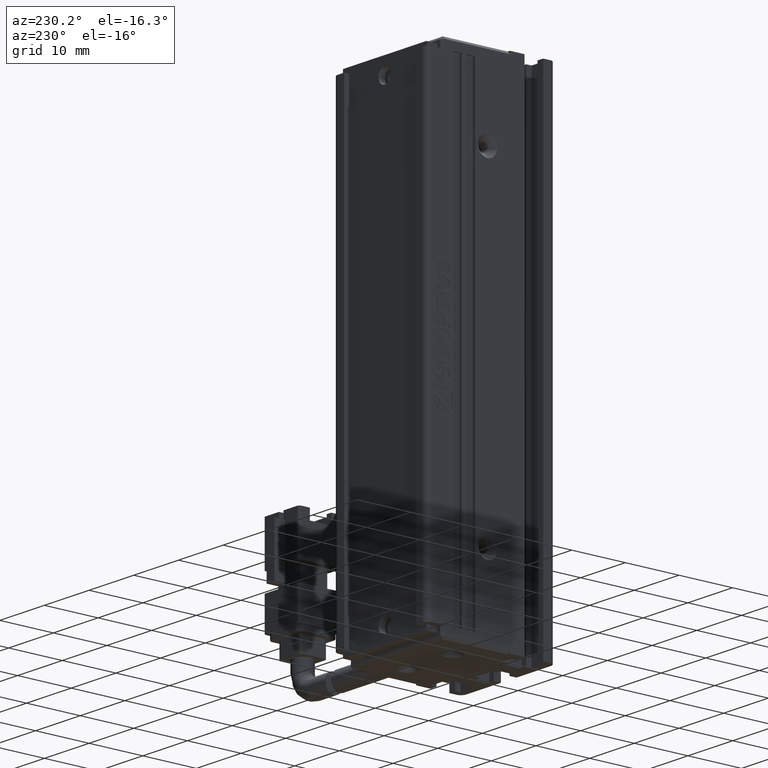
[diagram: clean part render]
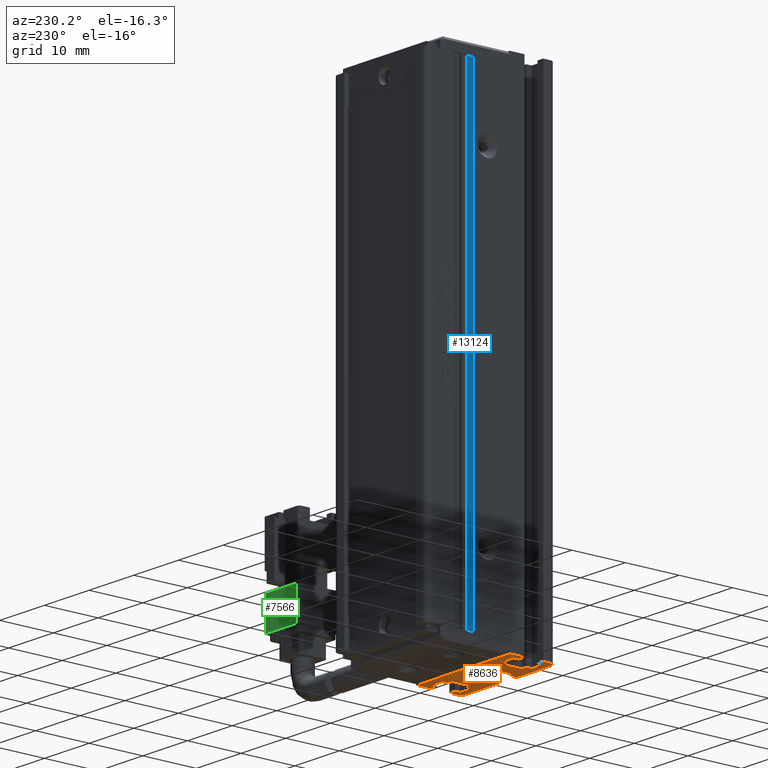
[diagram: same view with three faces highlighted in distinct colors, each labeled with its STEP entity id]
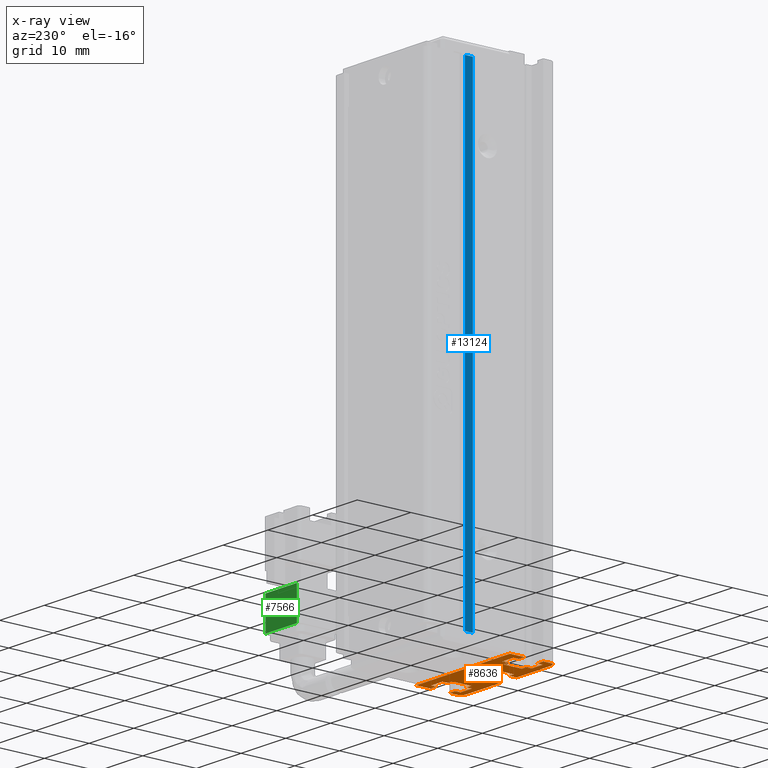
[diagram: x-ray of the same camera — body ghosted, the three highlighted faces saturated]
A machine part, auxiliary view with three faces highlighted in distinct colors.
The next image is the same camera in x-ray (body ghosted, the three faces saturated) — at least one of them is partly hidden behind the body in this view.
Their STEP definitions:

[orange] entity #8636 — the highlighted planar face has unit normal (-0, 0, 1).
#33 = LINE ( 'NONE', #20713, #29633 ) ;
#171 = VERTEX_POINT ( 'NONE', #16653 ) ;
#175 = ORIENTED_EDGE ( 'NONE', *, *, #8964, .F. ) ;
#263 = VECTOR ( 'NONE', #6238, 1000.000000000000000 ) ;
#284 = ORIENTED_EDGE ( 'NONE', *, *, #27319, .F. ) ;
#315 = VERTEX_POINT ( 'NONE', #16830 ) ;
#538 = ORIENTED_EDGE ( 'NONE', *, *, #23141, .T. ) ;
#656 = ORIENTED_EDGE ( 'NONE', *, *, #23299, .F. ) ;
#724 = ORIENTED_EDGE ( 'NONE', *, *, #30638, .T. ) ;
#781 = DIRECTION ( 'NONE',  ( -0.0000000000000000000, -1.000000000000000000, 0.0000000000000000000 ) ) ;
#829 = DIRECTION ( 'NONE',  ( -1.000000000000000000, -0.0000000000000000000, 0.0000000000000000000 ) ) ;
#907 = CARTESIAN_POINT ( 'NONE',  ( 42.67537974683542500, 15.79073232304837000, -160.0000000000000000 ) ) ;
#1117 = DIRECTION ( 'NONE',  ( 0.0000000000000000000, 0.0000000000000000000, 1.000000000000000000 ) ) ;
#1259 = ORIENTED_EDGE ( 'NONE', *, *, #13056, .F. ) ;
#1597 = DIRECTION ( 'NONE',  ( 1.000000000000000000, 0.0000000000000000000, 0.0000000000000000000 ) ) ;
#1750 = DIRECTION ( 'NONE',  ( -0.0000000000000000000, -1.000000000000000000, 0.0000000000000000000 ) ) ;
#1931 = ORIENTED_EDGE ( 'NONE', *, *, #32310, .F. ) ;
#1981 = CARTESIAN_POINT ( 'NONE',  ( 31.72537974683542600, 16.79073232304837400, -160.0000000000000000 ) ) ;
#2081 = EDGE_CURVE ( 'NONE', #29540, #19684, #17923, .T. ) ;
#2141 = CIRCLE ( 'NONE', #14010, 1.000000000000000900 ) ;
#2280 = DIRECTION ( 'NONE',  ( -0.0000000000000000000, -1.000000000000000000, 0.0000000000000000000 ) ) ;
#2318 = LINE ( 'NONE', #13762, #8532 ) ;
#2412 = DIRECTION ( 'NONE',  ( -0.0000000000000000000, -1.000000000000000000, 0.0000000000000000000 ) ) ;
#2566 = VERTEX_POINT ( 'NONE', #17621 ) ;
#2784 = ORIENTED_EDGE ( 'NONE', *, *, #5793, .T. ) ;
#2832 = VECTOR ( 'NONE', #2280, 1000.000000000000000 ) ;
#2977 = ORIENTED_EDGE ( 'NONE', *, *, #32053, .F. ) ;
#3270 = CARTESIAN_POINT ( 'NONE',  ( 40.92537974683543900, 13.29073232304835500, -160.0000000000000000 ) ) ;
#3381 = DIRECTION ( 'NONE',  ( 1.000000000000000000, -2.602085213965210200E-015, 0.0000000000000000000 ) ) ;
#3402 = VECTOR ( 'NONE', #3381, 1000.000000000000000 ) ;
#3404 = EDGE_CURVE ( 'NONE', #24667, #31929, #10517, .T. ) ;
#3559 = LINE ( 'NONE', #22908, #16745 ) ;
#3579 = ORIENTED_EDGE ( 'NONE', *, *, #19485, .F. ) ;
#3637 = LINE ( 'NONE', #4705, #2832 ) ;
#3763 = DIRECTION ( 'NONE',  ( -1.000000000000000000, -0.0000000000000000000, -0.0000000000000000000 ) ) ;
#3766 = CARTESIAN_POINT ( 'NONE',  ( 40.92537974683542500, 12.29073232304837200, -160.0000000000000000 ) ) ;
#3780 = LINE ( 'NONE', #11940, #29416 ) ;
#3788 = CARTESIAN_POINT ( 'NONE',  ( 51.42537974683541800, 16.79073232304837000, -160.0000000000000000 ) ) ;
#4031 = VERTEX_POINT ( 'NONE', #20805 ) ;
#4111 = ORIENTED_EDGE ( 'NONE', *, *, #31305, .T. ) ;
#4118 = VECTOR ( 'NONE', #19810, 1000.000000000000000 ) ;
#4123 = CARTESIAN_POINT ( 'NONE',  ( 38.17537974683542500, 7.083797468354437600, -160.0000000000000000 ) ) ;
#4227 = LINE ( 'NONE', #28382, #263 ) ;
#4268 = ORIENTED_EDGE ( 'NONE', *, *, #4432, .F. ) ;
#4294 = CARTESIAN_POINT ( 'NONE',  ( 43.67537974683542500, 7.083797468354437600, -160.0000000000000000 ) ) ;
#4432 = EDGE_CURVE ( 'NONE', #30656, #17570, #31017, .T. ) ;
#4528 = ORIENTED_EDGE ( 'NONE', *, *, #20346, .F. ) ;
#4584 = VECTOR ( 'NONE', #2412, 1000.000000000000000 ) ;
#4585 = VERTEX_POINT ( 'NONE', #26743 ) ;
#4660 = CARTESIAN_POINT ( 'NONE',  ( 39.17537974683542500, 14.79073232304837000, -160.0000000000000000 ) ) ;
#4705 = CARTESIAN_POINT ( 'NONE',  ( 51.42537974683541800, 7.083797468354437600, -160.0000000000000000 ) ) ;
#4825 = CARTESIAN_POINT ( 'NONE',  ( 30.42537974683542900, 19.49073232304837000, -160.0000000000000000 ) ) ;
#4867 = DIRECTION ( 'NONE',  ( -1.000000000000000000, -0.0000000000000000000, 0.0000000000000000000 ) ) ;
#4884 = CARTESIAN_POINT ( 'NONE',  ( 50.42537974683541800, 11.99073232304837000, -160.0000000000000000 ) ) ;
#5353 = CARTESIAN_POINT ( 'NONE',  ( 39.17537974683542500, 7.083797468354437600, -160.0000000000000000 ) ) ;
#5440 = CARTESIAN_POINT ( 'NONE',  ( 31.72537974683542600, 12.29073232304837200, -160.0000000000000000 ) ) ;
#5460 = LINE ( 'NONE', #6148, #31131 ) ;
#5793 = EDGE_CURVE ( 'NONE', #9365, #7753, #33, .T. ) ;
#5830 = EDGE_CURVE ( 'NONE', #14556, #27381, #24056, .T. ) ;
#5900 = LINE ( 'NONE', #21573, #24869 ) ;
#5940 = CARTESIAN_POINT ( 'NONE',  ( 43.67537974683542500, 14.79073232304837000, -160.0000000000000000 ) ) ;
#6055 = CARTESIAN_POINT ( 'NONE',  ( 30.42537974683543200, 7.083797468354424300, -160.0000000000000000 ) ) ;
#6073 = VERTEX_POINT ( 'NONE', #31805 ) ;
#6148 = CARTESIAN_POINT ( 'NONE',  ( 46.62537974683541400, 7.083797468354437600, -160.0000000000000000 ) ) ;
#6160 = ORIENTED_EDGE ( 'NONE', *, *, #12921, .F. ) ;
#6238 = DIRECTION ( 'NONE',  ( 0.0000000000000000000, 1.000000000000000000, 0.0000000000000000000 ) ) ;
#6468 = CARTESIAN_POINT ( 'NONE',  ( 31.42537974683542900, 11.99073232304837000, -160.0000000000000000 ) ) ;
#6599 = VERTEX_POINT ( 'NONE', #1981 ) ;
#6616 = DIRECTION ( 'NONE',  ( -1.000000000000000000, 0.0000000000000000000, 0.0000000000000000000 ) ) ;
#6624 = CARTESIAN_POINT ( 'NONE',  ( 31.72537974683542600, 17.79073232304837000, -160.0000000000000000 ) ) ;
#6701 = VERTEX_POINT ( 'NONE', #12047 ) ;
#6715 = ORIENTED_EDGE ( 'NONE', *, *, #3404, .F. ) ;
#7235 = CARTESIAN_POINT ( 'NONE',  ( 40.92537974683542500, 14.79073232304837000, -160.0000000000000000 ) ) ;
#7359 = CARTESIAN_POINT ( 'NONE',  ( 40.92537974683542500, 17.79073232304837000, -160.0000000000000000 ) ) ;
#7399 = LINE ( 'NONE', #3766, #30745 ) ;
#7452 = CARTESIAN_POINT ( 'NONE',  ( 46.62537974683541400, 16.79073232304837400, -160.0000000000000000 ) ) ;
#7454 = CARTESIAN_POINT ( 'NONE',  ( 40.92537974683541100, 13.29073232304835500, -160.0000000000000000 ) ) ;
#7513 = DIRECTION ( 'NONE',  ( 0.0000000000000000000, 1.000000000000000000, 0.0000000000000000000 ) ) ;
#7680 = VERTEX_POINT ( 'NONE', #29605 ) ;
#7710 = VERTEX_POINT ( 'NONE', #21974 ) ;
#7753 = VERTEX_POINT ( 'NONE', #4660 ) ;
#7761 = DIRECTION ( 'NONE',  ( 1.000000000000000000, 0.0000000000000000000, 0.0000000000000000000 ) ) ;
#7791 = CARTESIAN_POINT ( 'NONE',  ( 40.92537974683542500, 10.99073232304837000, -160.0000000000000000 ) ) ;
#7883 = CARTESIAN_POINT ( 'NONE',  ( 30.42537974683542100, 16.79073232304837400, -160.0000000000000000 ) ) ;
#7955 = VECTOR ( 'NONE', #24784, 1000.000000000000000 ) ;
#8183 = EDGE_CURVE ( 'NONE', #16789, #2566, #23273, .T. ) ;
#8262 = VECTOR ( 'NONE', #18425, 1000.000000000000000 ) ;
#8308 = VERTEX_POINT ( 'NONE', #22063 ) ;
#8383 = LINE ( 'NONE', #13647, #13788 ) ;
#8480 = ORIENTED_EDGE ( 'NONE', *, *, #5830, .F. ) ;
#8532 = VECTOR ( 'NONE', #1750, 1000.000000000000000 ) ;
#8636 = ADVANCED_FACE ( 'NONE', ( #14652 ), #11101, .F. ) ;
#8952 = EDGE_CURVE ( 'NONE', #27381, #30656, #3780, .T. ) ;
#8964 = EDGE_CURVE ( 'NONE', #27276, #15067, #11303, .T. ) ;
#9144 = VECTOR ( 'NONE', #17753, 1000.000000000000000 ) ;
#9185 = CARTESIAN_POINT ( 'NONE',  ( 34.22537974683547200, 7.083797468354414500, -160.0000000000000000 ) ) ;
#9226 = VECTOR ( 'NONE', #3763, 1000.000000000000000 ) ;
#9258 = VERTEX_POINT ( 'NONE', #16160 ) ;
#9273 = CARTESIAN_POINT ( 'NONE',  ( 34.22537974683543600, 13.29073232304837200, -160.0000000000000000 ) ) ;
#9365 = VERTEX_POINT ( 'NONE', #16904 ) ;
#9572 = EDGE_CURVE ( 'NONE', #6073, #15067, #20076, .T. ) ;
#9622 = ORIENTED_EDGE ( 'NONE', *, *, #32077, .F. ) ;
#9957 = LINE ( 'NONE', #13425, #30201 ) ;
#10239 = CARTESIAN_POINT ( 'NONE',  ( 40.92537974683542500, 17.79073232304837400, -160.0000000000000000 ) ) ;
#10453 = VECTOR ( 'NONE', #11948, 1000.000000000000000 ) ;
#10517 = LINE ( 'NONE', #30478, #22147 ) ;
#10618 = ORIENTED_EDGE ( 'NONE', *, *, #14566, .F. ) ;
#10764 = LINE ( 'NONE', #27944, #20873 ) ;
#10965 = CARTESIAN_POINT ( 'NONE',  ( 47.62537974683543500, 7.083797468354461600, -160.0000000000000000 ) ) ;
#11101 = PLANE ( 'NONE',  #27574 ) ;
#11209 = CARTESIAN_POINT ( 'NONE',  ( 50.12537974683542800, 13.29073232304837200, -160.0000000000000000 ) ) ;
#11222 = CARTESIAN_POINT ( 'NONE',  ( 47.62537974683541400, 13.29073232304837200, -160.0000000000000000 ) ) ;
#11253 = DIRECTION ( 'NONE',  ( -3.469446951953635100E-015, 1.000000000000000000, 0.0000000000000000000 ) ) ;
#11303 = LINE ( 'NONE', #5353, #24392 ) ;
#11431 = LINE ( 'NONE', #7235, #26552 ) ;
#11552 = CARTESIAN_POINT ( 'NONE',  ( 50.12537974683542800, 12.29073232304837200, -160.0000000000000000 ) ) ;
#11593 = DIRECTION ( 'NONE',  ( 3.469446951953608300E-015, 1.000000000000000000, 0.0000000000000000000 ) ) ;
#11784 = LINE ( 'NONE', #26173, #23422 ) ;
#11933 = VECTOR ( 'NONE', #7761, 1000.000000000000000 ) ;
#11940 = CARTESIAN_POINT ( 'NONE',  ( 50.12537974683540700, 7.083797468354405600, -160.0000000000000000 ) ) ;
#11948 = DIRECTION ( 'NONE',  ( 1.000000000000000000, 0.0000000000000000000, 0.0000000000000000000 ) ) ;
#12047 = CARTESIAN_POINT ( 'NONE',  ( 46.62537974683541400, 13.29073232304837200, -160.0000000000000000 ) ) ;
#12068 = EDGE_CURVE ( 'NONE', #30229, #6599, #23392, .T. ) ;
#12183 = LINE ( 'NONE', #7454, #7955 ) ;
#12502 = ORIENTED_EDGE ( 'NONE', *, *, #27012, .F. ) ;
#12715 = CARTESIAN_POINT ( 'NONE',  ( 39.17537974683542500, 10.99073232304837000, -160.0000000000000000 ) ) ;
#12765 = ORIENTED_EDGE ( 'NONE', *, *, #14343, .F. ) ;
#12785 = VECTOR ( 'NONE', #30685, 1000.000000000000000 ) ;
#12921 = EDGE_CURVE ( 'NONE', #6701, #24050, #5460, .T. ) ;
#13021 = LINE ( 'NONE', #28951, #24258 ) ;
#13056 = EDGE_CURVE ( 'NONE', #16138, #6599, #14325, .T. ) ;
#13075 = LINE ( 'NONE', #10239, #11933 ) ;
#13223 = CARTESIAN_POINT ( 'NONE',  ( 40.92537974683542500, 19.49073232304837000, -160.0000000000000000 ) ) ;
#13233 = DIRECTION ( 'NONE',  ( 1.000000000000000000, 0.0000000000000000000, 0.0000000000000000000 ) ) ;
#13256 = CARTESIAN_POINT ( 'NONE',  ( 35.22537974683543600, 16.79073232304837400, -160.0000000000000000 ) ) ;
#13337 = EDGE_CURVE ( 'NONE', #171, #19684, #4227, .T. ) ;
#13356 = VERTEX_POINT ( 'NONE', #30799 ) ;
#13425 = CARTESIAN_POINT ( 'NONE',  ( 40.92537974683543900, 16.79073232304838100, -160.0000000000000000 ) ) ;
#13436 = VECTOR ( 'NONE', #30076, 1000.000000000000000 ) ;
#13571 = CIRCLE ( 'NONE', #26814, 1.000000000000000900 ) ;
#13647 = CARTESIAN_POINT ( 'NONE',  ( 50.12537974683544900, 7.083797468354469600, -160.0000000000000000 ) ) ;
#13671 = DIRECTION ( 'NONE',  ( -0.0000000000000000000, 0.0000000000000000000, 1.000000000000000000 ) ) ;
#13762 = CARTESIAN_POINT ( 'NONE',  ( 35.22537974683543600, 7.083797468354437600, -160.0000000000000000 ) ) ;
#13788 = VECTOR ( 'NONE', #31414, 1000.000000000000000 ) ;
#13965 = CARTESIAN_POINT ( 'NONE',  ( 51.42537974683541800, 11.99073232304837000, -160.0000000000000000 ) ) ;
#14010 = AXIS2_PLACEMENT_3D ( 'NONE', #6468, #1117, #28701 ) ;
#14049 = EDGE_CURVE ( 'NONE', #6073, #7680, #31722, .T. ) ;
#14325 = LINE ( 'NONE', #14989, #10453 ) ;
#14343 = EDGE_CURVE ( 'NONE', #24382, #6701, #12183, .T. ) ;
#14556 = VERTEX_POINT ( 'NONE', #28407 ) ;
#14566 = EDGE_CURVE ( 'NONE', #16947, #7710, #11784, .T. ) ;
#14652 = FACE_OUTER_BOUND ( 'NONE', #21927, .T. ) ;
#14989 = CARTESIAN_POINT ( 'NONE',  ( 40.92537974683542500, 16.79073232304837400, -160.0000000000000000 ) ) ;
#15067 = VERTEX_POINT ( 'NONE', #18257 ) ;
#15121 = CARTESIAN_POINT ( 'NONE',  ( 31.72537974683542600, 13.29073232304837200, -160.0000000000000000 ) ) ;
#15237 = CARTESIAN_POINT ( 'NONE',  ( 40.92537974683542500, 14.79073232304837000, -160.0000000000000000 ) ) ;
#15286 = EDGE_CURVE ( 'NONE', #8308, #19026, #5900, .T. ) ;
#15395 = VERTEX_POINT ( 'NONE', #13965 ) ;
#15575 = CARTESIAN_POINT ( 'NONE',  ( 40.92537974683542500, 13.29073232304837200, -160.0000000000000000 ) ) ;
#15824 = VECTOR ( 'NONE', #30501, 1000.000000000000000 ) ;
#15920 = LINE ( 'NONE', #13223, #12785 ) ;
#16138 = VERTEX_POINT ( 'NONE', #7883 ) ;
#16160 = CARTESIAN_POINT ( 'NONE',  ( 35.22537974683543600, 13.29073232304837000, -160.0000000000000000 ) ) ;
#16209 = VERTEX_POINT ( 'NONE', #15121 ) ;
#16291 = DIRECTION ( 'NONE',  ( -1.334402673828310700E-015, -1.000000000000000000, 0.0000000000000000000 ) ) ;
#16506 = EDGE_CURVE ( 'NONE', #18900, #29540, #26255, .T. ) ;
#16526 = VECTOR ( 'NONE', #28752, 1000.000000000000000 ) ;
#16564 = VECTOR ( 'NONE', #23207, 1000.000000000000000 ) ;
#16653 = CARTESIAN_POINT ( 'NONE',  ( 42.67537974683542500, 10.99073232304837000, -160.0000000000000000 ) ) ;
#16696 = VECTOR ( 'NONE', #11253, 1000.000000000000000 ) ;
#16710 = ORIENTED_EDGE ( 'NONE', *, *, #25801, .F. ) ;
#16745 = VECTOR ( 'NONE', #781, 1000.000000000000000 ) ;
#16747 = EDGE_CURVE ( 'NONE', #17570, #24382, #23132, .T. ) ;
#16758 = ORIENTED_EDGE ( 'NONE', *, *, #18036, .T. ) ;
#16789 = VERTEX_POINT ( 'NONE', #20977 ) ;
#16830 = CARTESIAN_POINT ( 'NONE',  ( 51.42537974683541800, 19.49073232304837000, -160.0000000000000000 ) ) ;
#16904 = CARTESIAN_POINT ( 'NONE',  ( 39.17537974683542500, 15.79073232304837000, -160.0000000000000000 ) ) ;
#16930 = EDGE_CURVE ( 'NONE', #24667, #4031, #8383, .T. ) ;
#16932 = EDGE_CURVE ( 'NONE', #14556, #15395, #27027, .T. ) ;
#16947 = VERTEX_POINT ( 'NONE', #28685 ) ;
#16959 = VECTOR ( 'NONE', #29025, 1000.000000000000000 ) ;
#16966 = LINE ( 'NONE', #22251, #4584 ) ;
#17176 = LINE ( 'NONE', #23323, #27692 ) ;
#17286 = LINE ( 'NONE', #26993, #4118 ) ;
#17556 = EDGE_CURVE ( 'NONE', #7753, #7680, #11431, .T. ) ;
#17570 = VERTEX_POINT ( 'NONE', #21970 ) ;
#17581 = ORIENTED_EDGE ( 'NONE', *, *, #16932, .T. ) ;
#17621 = CARTESIAN_POINT ( 'NONE',  ( 34.22537974683542900, 17.79073232304837000, -160.0000000000000000 ) ) ;
#17753 = DIRECTION ( 'NONE',  ( 1.000000000000000000, 0.0000000000000000000, 0.0000000000000000000 ) ) ;
#17923 = LINE ( 'NONE', #24636, #21063 ) ;
#17985 = CARTESIAN_POINT ( 'NONE',  ( 40.92537974683542500, 12.29073232304837200, -160.0000000000000000 ) ) ;
#18036 = EDGE_CURVE ( 'NONE', #315, #31929, #3637, .T. ) ;
#18077 = VERTEX_POINT ( 'NONE', #27669 ) ;
#18151 = VERTEX_POINT ( 'NONE', #5440 ) ;
#18257 = CARTESIAN_POINT ( 'NONE',  ( 39.17537974683542500, 12.29073232304837200, -160.0000000000000000 ) ) ;
#18334 = ORIENTED_EDGE ( 'NONE', *, *, #2081, .F. ) ;
#18425 = DIRECTION ( 'NONE',  ( 1.334402673828310700E-015, -1.000000000000000000, 0.0000000000000000000 ) ) ;
#18686 = VECTOR ( 'NONE', #1597, 1000.000000000000000 ) ;
#18746 = DIRECTION ( 'NONE',  ( -1.000000000000000000, -0.0000000000000000000, -0.0000000000000000000 ) ) ;
#18811 = VERTEX_POINT ( 'NONE', #13256 ) ;
#18891 = VECTOR ( 'NONE', #16291, 1000.000000000000000 ) ;
#18900 = VERTEX_POINT ( 'NONE', #5940 ) ;
#18907 = CARTESIAN_POINT ( 'NONE',  ( 51.42537974683541100, 7.083797468354424300, -160.0000000000000000 ) ) ;
#19026 = VERTEX_POINT ( 'NONE', #9273 ) ;
#19248 = EDGE_CURVE ( 'NONE', #27677, #16138, #16966, .T. ) ;
#19290 = DIRECTION ( 'NONE',  ( 3.469446951953608300E-015, -1.000000000000000000, 0.0000000000000000000 ) ) ;
#19329 = EDGE_CURVE ( 'NONE', #19026, #9258, #25879, .T. ) ;
#19430 = VECTOR ( 'NONE', #829, 1000.000000000000000 ) ;
#19485 = EDGE_CURVE ( 'NONE', #24050, #16947, #9957, .T. ) ;
#19684 = VERTEX_POINT ( 'NONE', #31630 ) ;
#19728 = ORIENTED_EDGE ( 'NONE', *, *, #16747, .F. ) ;
#19810 = DIRECTION ( 'NONE',  ( 1.000000000000000000, 0.0000000000000000000, 0.0000000000000000000 ) ) ;
#20008 = ORIENTED_EDGE ( 'NONE', *, *, #29280, .F. ) ;
#20076 = LINE ( 'NONE', #17985, #13436 ) ;
#20290 = EDGE_CURVE ( 'NONE', #18077, #16209, #17286, .T. ) ;
#20295 = CARTESIAN_POINT ( 'NONE',  ( 50.12537974683542800, 16.79073232304837000, -160.0000000000000000 ) ) ;
#20346 = EDGE_CURVE ( 'NONE', #171, #20677, #25405, .T. ) ;
#20355 = DIRECTION ( 'NONE',  ( 1.000000000000000000, 0.0000000000000000000, 0.0000000000000000000 ) ) ;
#20677 = VERTEX_POINT ( 'NONE', #26199 ) ;
#20713 = CARTESIAN_POINT ( 'NONE',  ( 39.17537974683542500, 7.083797468354437600, -160.0000000000000000 ) ) ;
#20766 = CARTESIAN_POINT ( 'NONE',  ( 43.67537974683542500, 12.29073232304837200, -160.0000000000000000 ) ) ;
#20805 = CARTESIAN_POINT ( 'NONE',  ( 50.12537974683542100, 17.79073232304837400, -160.0000000000000000 ) ) ;
#20873 = VECTOR ( 'NONE', #13233, 1000.000000000000000 ) ;
#20977 = CARTESIAN_POINT ( 'NONE',  ( 34.22537974683543600, 16.79073232304837400, -160.0000000000000000 ) ) ;
#21063 = VECTOR ( 'NONE', #22477, 1000.000000000000000 ) ;
#21192 = VERTEX_POINT ( 'NONE', #907 ) ;
#21295 = ORIENTED_EDGE ( 'NONE', *, *, #12068, .T. ) ;
#21313 = CARTESIAN_POINT ( 'NONE',  ( 31.42537974683542900, 10.99073232304837000, -160.0000000000000000 ) ) ;
#21456 = DIRECTION ( 'NONE',  ( 0.0000000000000000000, 0.0000000000000000000, 1.000000000000000000 ) ) ;
#21573 = CARTESIAN_POINT ( 'NONE',  ( 34.22537974683541500, 7.083797468354461600, -160.0000000000000000 ) ) ;
#21927 = EDGE_LOOP ( 'NONE', ( #16758, #6715, #25555, #20008, #10618, #3579, #6160, #12765, #19728, #4268, #29172, #8480, #17581, #9622, #4528, #28926, #18334, #27865, #27610, #284, #22467, #2784, #27437, #25284, #27803, #175, #23139, #16710, #12502, #22222, #724, #1931, #26470, #30491, #656, #4111, #22468, #2977, #21295, #1259, #28903, #538 ) ) ;
#21970 = CARTESIAN_POINT ( 'NONE',  ( 47.62537974683541400, 12.29073232304837200, -160.0000000000000000 ) ) ;
#21974 = CARTESIAN_POINT ( 'NONE',  ( 47.62537974683541400, 17.79073232304837400, -160.0000000000000000 ) ) ;
#22063 = CARTESIAN_POINT ( 'NONE',  ( 34.22537974683542900, 12.29073232304837200, -160.0000000000000000 ) ) ;
#22120 = LINE ( 'NONE', #7359, #18686 ) ;
#22147 = VECTOR ( 'NONE', #30585, 1000.000000000000000 ) ;
#22222 = ORIENTED_EDGE ( 'NONE', *, *, #20290, .T. ) ;
#22251 = CARTESIAN_POINT ( 'NONE',  ( 30.42537974683542100, 7.083797468354437600, -160.0000000000000000 ) ) ;
#22467 = ORIENTED_EDGE ( 'NONE', *, *, #29419, .F. ) ;
#22468 = ORIENTED_EDGE ( 'NONE', *, *, #8183, .T. ) ;
#22477 = DIRECTION ( 'NONE',  ( -1.000000000000000000, -0.0000000000000000000, 0.0000000000000000000 ) ) ;
#22908 = CARTESIAN_POINT ( 'NONE',  ( 42.67537974683542500, 7.083797468354437600, -160.0000000000000000 ) ) ;
#23132 = LINE ( 'NONE', #10965, #16564 ) ;
#23139 = ORIENTED_EDGE ( 'NONE', *, *, #24153, .F. ) ;
#23141 = EDGE_CURVE ( 'NONE', #27677, #315, #15920, .T. ) ;
#23207 = DIRECTION ( 'NONE',  ( -3.469446951953608300E-015, 1.000000000000000000, 0.0000000000000000000 ) ) ;
#23231 = CARTESIAN_POINT ( 'NONE',  ( 40.92537974683542500, 7.083797468354437600, -160.0000000000000000 ) ) ;
#23273 = LINE ( 'NONE', #9185, #16696 ) ;
#23299 = EDGE_CURVE ( 'NONE', #18811, #9258, #2318, .T. ) ;
#23323 = CARTESIAN_POINT ( 'NONE',  ( 40.92537974683543900, 16.79073232304836000, -160.0000000000000000 ) ) ;
#23392 = LINE ( 'NONE', #30145, #29680 ) ;
#23422 = VECTOR ( 'NONE', #26066, 1000.000000000000000 ) ;
#24050 = VERTEX_POINT ( 'NONE', #7452 ) ;
#24056 = LINE ( 'NONE', #15575, #19430 ) ;
#24153 = EDGE_CURVE ( 'NONE', #27375, #27276, #25118, .T. ) ;
#24258 = VECTOR ( 'NONE', #19290, 1000.000000000000000 ) ;
#24382 = VERTEX_POINT ( 'NONE', #11222 ) ;
#24392 = VECTOR ( 'NONE', #7513, 1000.000000000000000 ) ;
#24636 = CARTESIAN_POINT ( 'NONE',  ( 40.92537974683542500, 12.29073232304837200, -160.0000000000000000 ) ) ;
#24667 = VERTEX_POINT ( 'NONE', #20295 ) ;
#24784 = DIRECTION ( 'NONE',  ( -1.000000000000000000, -2.602085213965210200E-015, 0.0000000000000000000 ) ) ;
#24869 = VECTOR ( 'NONE', #11593, 1000.000000000000000 ) ;
#25118 = LINE ( 'NONE', #28301, #15824 ) ;
#25268 = DIRECTION ( 'NONE',  ( -3.469446951953608300E-015, -1.000000000000000000, 0.0000000000000000000 ) ) ;
#25284 = ORIENTED_EDGE ( 'NONE', *, *, #14049, .F. ) ;
#25405 = LINE ( 'NONE', #7791, #9144 ) ;
#25555 = ORIENTED_EDGE ( 'NONE', *, *, #16930, .T. ) ;
#25801 = EDGE_CURVE ( 'NONE', #13356, #27375, #2141, .T. ) ;
#25879 = LINE ( 'NONE', #3270, #3402 ) ;
#26066 = DIRECTION ( 'NONE',  ( 3.469446951953611000E-015, 1.000000000000000000, 0.0000000000000000000 ) ) ;
#26168 = DIRECTION ( 'NONE',  ( 0.0000000000000000000, 1.000000000000000000, -0.0000000000000000000 ) ) ;
#26173 = CARTESIAN_POINT ( 'NONE',  ( 47.62537974683537800, 7.083797468354414500, -160.0000000000000000 ) ) ;
#26199 = CARTESIAN_POINT ( 'NONE',  ( 50.42537974683541800, 10.99073232304837000, -160.0000000000000000 ) ) ;
#26255 = LINE ( 'NONE', #4294, #16959 ) ;
#26357 = LINE ( 'NONE', #15237, #27569 ) ;
#26470 = ORIENTED_EDGE ( 'NONE', *, *, #15286, .T. ) ;
#26552 = VECTOR ( 'NONE', #4867, 1000.000000000000000 ) ;
#26743 = CARTESIAN_POINT ( 'NONE',  ( 42.67537974683542500, 14.79073232304837000, -160.0000000000000000 ) ) ;
#26814 = AXIS2_PLACEMENT_3D ( 'NONE', #4884, #21456, #6616 ) ;
#26993 = CARTESIAN_POINT ( 'NONE',  ( 40.92537974683542500, 13.29073232304837200, -160.0000000000000000 ) ) ;
#27012 = EDGE_CURVE ( 'NONE', #18077, #13356, #28468, .T. ) ;
#27027 = LINE ( 'NONE', #18907, #18891 ) ;
#27276 = VERTEX_POINT ( 'NONE', #12715 ) ;
#27319 = EDGE_CURVE ( 'NONE', #21192, #4585, #3559, .T. ) ;
#27375 = VERTEX_POINT ( 'NONE', #21313 ) ;
#27381 = VERTEX_POINT ( 'NONE', #11209 ) ;
#27437 = ORIENTED_EDGE ( 'NONE', *, *, #17556, .T. ) ;
#27497 = DIRECTION ( 'NONE',  ( -3.469446951953635100E-015, -1.000000000000000000, 0.0000000000000000000 ) ) ;
#27569 = VECTOR ( 'NONE', #20355, 1000.000000000000000 ) ;
#27574 = AXIS2_PLACEMENT_3D ( 'NONE', #23231, #13671, #30820 ) ;
#27610 = ORIENTED_EDGE ( 'NONE', *, *, #32199, .F. ) ;
#27669 = CARTESIAN_POINT ( 'NONE',  ( 30.42537974683542100, 13.29073232304837200, -160.0000000000000000 ) ) ;
#27677 = VERTEX_POINT ( 'NONE', #4825 ) ;
#27692 = VECTOR ( 'NONE', #28486, 1000.000000000000000 ) ;
#27803 = ORIENTED_EDGE ( 'NONE', *, *, #9572, .T. ) ;
#27865 = ORIENTED_EDGE ( 'NONE', *, *, #16506, .F. ) ;
#27889 = DIRECTION ( 'NONE',  ( -0.0000000000000000000, -1.000000000000000000, 0.0000000000000000000 ) ) ;
#27944 = CARTESIAN_POINT ( 'NONE',  ( 40.92537974683542500, 15.79073232304837000, -160.0000000000000000 ) ) ;
#28301 = CARTESIAN_POINT ( 'NONE',  ( 40.92537974683542500, 10.99073232304837000, -160.0000000000000000 ) ) ;
#28372 = DIRECTION ( 'NONE',  ( 1.000000000000000000, -1.734723475976807500E-015, 0.0000000000000000000 ) ) ;
#28382 = CARTESIAN_POINT ( 'NONE',  ( 42.67537974683542500, 7.083797468354437600, -160.0000000000000000 ) ) ;
#28407 = CARTESIAN_POINT ( 'NONE',  ( 51.42537974683541800, 13.29073232304837200, -160.0000000000000000 ) ) ;
#28468 = LINE ( 'NONE', #6055, #8262 ) ;
#28486 = DIRECTION ( 'NONE',  ( -1.000000000000000000, 1.734723475976807500E-015, 0.0000000000000000000 ) ) ;
#28685 = CARTESIAN_POINT ( 'NONE',  ( 47.62537974683541400, 16.79073232304837000, -160.0000000000000000 ) ) ;
#28701 = DIRECTION ( 'NONE',  ( -1.000000000000000000, 0.0000000000000000000, 0.0000000000000000000 ) ) ;
#28752 = DIRECTION ( 'NONE',  ( 0.0000000000000000000, 1.000000000000000000, -0.0000000000000000000 ) ) ;
#28829 = CARTESIAN_POINT ( 'NONE',  ( 40.92537974683542500, 12.29073232304837200, -160.0000000000000000 ) ) ;
#28903 = ORIENTED_EDGE ( 'NONE', *, *, #19248, .F. ) ;
#28926 = ORIENTED_EDGE ( 'NONE', *, *, #13337, .T. ) ;
#28951 = CARTESIAN_POINT ( 'NONE',  ( 31.72537974683544000, 7.083797468354405600, -160.0000000000000000 ) ) ;
#29025 = DIRECTION ( 'NONE',  ( -0.0000000000000000000, -1.000000000000000000, 0.0000000000000000000 ) ) ;
#29172 = ORIENTED_EDGE ( 'NONE', *, *, #8952, .F. ) ;
#29280 = EDGE_CURVE ( 'NONE', #7710, #4031, #13075, .T. ) ;
#29416 = VECTOR ( 'NONE', #25268, 1000.000000000000000 ) ;
#29419 = EDGE_CURVE ( 'NONE', #9365, #21192, #10764, .T. ) ;
#29540 = VERTEX_POINT ( 'NONE', #20766 ) ;
#29605 = CARTESIAN_POINT ( 'NONE',  ( 38.17537974683542500, 14.79073232304837000, -160.0000000000000000 ) ) ;
#29633 = VECTOR ( 'NONE', #27889, 1000.000000000000000 ) ;
#29680 = VECTOR ( 'NONE', #27497, 1000.000000000000000 ) ;
#30076 = DIRECTION ( 'NONE',  ( 1.000000000000000000, 0.0000000000000000000, 0.0000000000000000000 ) ) ;
#30145 = CARTESIAN_POINT ( 'NONE',  ( 31.72537974683539000, 7.083797468354469600, -160.0000000000000000 ) ) ;
#30201 = VECTOR ( 'NONE', #28372, 1000.000000000000000 ) ;
#30229 = VERTEX_POINT ( 'NONE', #6624 ) ;
#30478 = CARTESIAN_POINT ( 'NONE',  ( 40.92537974683542500, 16.79073232304837000, -160.0000000000000000 ) ) ;
#30491 = ORIENTED_EDGE ( 'NONE', *, *, #19329, .T. ) ;
#30501 = DIRECTION ( 'NONE',  ( 1.000000000000000000, 0.0000000000000000000, 0.0000000000000000000 ) ) ;
#30585 = DIRECTION ( 'NONE',  ( 1.000000000000000000, 0.0000000000000000000, 0.0000000000000000000 ) ) ;
#30638 = EDGE_CURVE ( 'NONE', #16209, #18151, #13021, .T. ) ;
#30656 = VERTEX_POINT ( 'NONE', #11552 ) ;
#30685 = DIRECTION ( 'NONE',  ( 1.000000000000000000, 0.0000000000000000000, 0.0000000000000000000 ) ) ;
#30745 = VECTOR ( 'NONE', #18746, 1000.000000000000000 ) ;
#30799 = CARTESIAN_POINT ( 'NONE',  ( 30.42537974683542500, 11.99073232304837000, -160.0000000000000000 ) ) ;
#30820 = DIRECTION ( 'NONE',  ( 1.000000000000000000, 0.0000000000000000000, 0.0000000000000000000 ) ) ;
#31017 = LINE ( 'NONE', #28829, #9226 ) ;
#31131 = VECTOR ( 'NONE', #26168, 1000.000000000000000 ) ;
#31305 = EDGE_CURVE ( 'NONE', #18811, #16789, #17176, .T. ) ;
#31414 = DIRECTION ( 'NONE',  ( -3.469446951953611000E-015, 1.000000000000000000, 0.0000000000000000000 ) ) ;
#31630 = CARTESIAN_POINT ( 'NONE',  ( 42.67537974683542500, 12.29073232304837200, -160.0000000000000000 ) ) ;
#31722 = LINE ( 'NONE', #4123, #16526 ) ;
#31805 = CARTESIAN_POINT ( 'NONE',  ( 38.17537974683542500, 12.29073232304837200, -160.0000000000000000 ) ) ;
#31929 = VERTEX_POINT ( 'NONE', #3788 ) ;
#32053 = EDGE_CURVE ( 'NONE', #30229, #2566, #22120, .T. ) ;
#32077 = EDGE_CURVE ( 'NONE', #20677, #15395, #13571, .T. ) ;
#32199 = EDGE_CURVE ( 'NONE', #4585, #18900, #26357, .T. ) ;
#32310 = EDGE_CURVE ( 'NONE', #8308, #18151, #7399, .T. ) ;

[blue] entity #13124 — the highlighted planar face has unit normal (1, 0, -0).
#369 = VECTOR ( 'NONE', #28217, 1000.000000000000000 ) ;
#1085 = EDGE_LOOP ( 'NONE', ( #24962, #17447, #1316, #9030 ) ) ;
#1316 = ORIENTED_EDGE ( 'NONE', *, *, #15680, .F. ) ;
#4625 = VERTEX_POINT ( 'NONE', #9172 ) ;
#5652 = CARTESIAN_POINT ( 'NONE',  ( 30.92537974683542500, 25.99073232304837300, -72.00000000000001400 ) ) ;
#5942 = VECTOR ( 'NONE', #29493, 1000.000000000000000 ) ;
#9030 = ORIENTED_EDGE ( 'NONE', *, *, #27158, .T. ) ;
#9172 = CARTESIAN_POINT ( 'NONE',  ( 30.92537974683542100, 27.49073232304837000, -158.0000000000000000 ) ) ;
#9827 = DIRECTION ( 'NONE',  ( 0.0000000000000000000, 0.0000000000000000000, 1.000000000000000000 ) ) ;
#9836 = LINE ( 'NONE', #20780, #29683 ) ;
#10955 = LINE ( 'NONE', #31696, #5942 ) ;
#12091 = CARTESIAN_POINT ( 'NONE',  ( 30.92537974683542100, 27.49073232304837000, -72.00000000000001400 ) ) ;
#12481 = CARTESIAN_POINT ( 'NONE',  ( 30.92537974683545000, 7.083797468354426900, -70.00000000000000000 ) ) ;
#12937 = DIRECTION ( 'NONE',  ( 1.156482317317873100E-015, -1.000000000000000000, -0.0000000000000000000 ) ) ;
#13124 = ADVANCED_FACE ( 'NONE', ( #18642 ), #22481, .F. ) ;
#13601 = AXIS2_PLACEMENT_3D ( 'NONE', #12481, #29031, #14109 ) ;
#14109 = DIRECTION ( 'NONE',  ( -1.156482317317873100E-015, 1.000000000000000000, 0.0000000000000000000 ) ) ;
#14134 = LINE ( 'NONE', #22183, #18857 ) ;
#14208 = EDGE_CURVE ( 'NONE', #4625, #23946, #14134, .T. ) ;
#15680 = EDGE_CURVE ( 'NONE', #28933, #4625, #24049, .T. ) ;
#17447 = ORIENTED_EDGE ( 'NONE', *, *, #14208, .F. ) ;
#17717 = EDGE_CURVE ( 'NONE', #23946, #23602, #9836, .T. ) ;
#18642 = FACE_OUTER_BOUND ( 'NONE', #1085, .T. ) ;
#18857 = VECTOR ( 'NONE', #9827, 1000.000000000000000 ) ;
#20780 = CARTESIAN_POINT ( 'NONE',  ( 30.92537974683545000, 7.083797468354426900, -72.00000000000001400 ) ) ;
#22183 = CARTESIAN_POINT ( 'NONE',  ( 30.92537974683542100, 27.49073232304837000, -70.00000000000000000 ) ) ;
#22481 = PLANE ( 'NONE',  #13601 ) ;
#23602 = VERTEX_POINT ( 'NONE', #5652 ) ;
#23946 = VERTEX_POINT ( 'NONE', #12091 ) ;
#24049 = LINE ( 'NONE', #25355, #369 ) ;
#24962 = ORIENTED_EDGE ( 'NONE', *, *, #17717, .F. ) ;
#25355 = CARTESIAN_POINT ( 'NONE',  ( 30.92537974683545000, 7.083797468354426900, -158.0000000000000000 ) ) ;
#27158 = EDGE_CURVE ( 'NONE', #28933, #23602, #10955, .T. ) ;
#28217 = DIRECTION ( 'NONE',  ( -1.156482317317873100E-015, 1.000000000000000000, 0.0000000000000000000 ) ) ;
#28629 = CARTESIAN_POINT ( 'NONE',  ( 30.92537974683542500, 25.99073232304837300, -158.0000000000000000 ) ) ;
#28933 = VERTEX_POINT ( 'NONE', #28629 ) ;
#29031 = DIRECTION ( 'NONE',  ( 1.000000000000000000, 1.156482317317873100E-015, -0.0000000000000000000 ) ) ;
#29493 = DIRECTION ( 'NONE',  ( -0.0000000000000000000, 0.0000000000000000000, 1.000000000000000000 ) ) ;
#29683 = VECTOR ( 'NONE', #12937, 1000.000000000000000 ) ;
#31696 = CARTESIAN_POINT ( 'NONE',  ( 30.92537974683542500, 25.99073232304837300, -70.00000000000000000 ) ) ;

[green] entity #7566 — the highlighted planar face has unit normal (0, -1, 0).
#768 = DIRECTION ( 'NONE',  ( -1.041348031262155300E-030, 5.551115123125780200E-017, 1.000000000000000000 ) ) ;
#1563 = FACE_OUTER_BOUND ( 'NONE', #15628, .T. ) ;
#2298 = ORIENTED_EDGE ( 'NONE', *, *, #6182, .F. ) ;
#3186 = ORIENTED_EDGE ( 'NONE', *, *, #10797, .F. ) ;
#4669 = EDGE_CURVE ( 'NONE', #7280, #26355, #16163, .T. ) ;
#6011 = VERTEX_POINT ( 'NONE', #26419 ) ;
#6182 = EDGE_CURVE ( 'NONE', #26355, #6011, #22308, .T. ) ;
#7146 = VECTOR ( 'NONE', #768, 1000.000000000000000 ) ;
#7280 = VERTEX_POINT ( 'NONE', #12336 ) ;
#7566 = ADVANCED_FACE ( 'NONE', ( #1563 ), #8874, .F. ) ;
#7595 = VERTEX_POINT ( 'NONE', #16350 ) ;
#8874 = PLANE ( 'NONE',  #17332 ) ;
#9283 = CARTESIAN_POINT ( 'NONE',  ( 70.92537974683534700, 25.49073232304856900, -141.4499999999999900 ) ) ;
#10611 = DIRECTION ( 'NONE',  ( 1.000000000000000000, 3.304235192336770000E-015, 8.579261317967046800E-031 ) ) ;
#10797 = EDGE_CURVE ( 'NONE', #7595, #7280, #13699, .T. ) ;
#12194 = CARTESIAN_POINT ( 'NONE',  ( 70.92537974683534700, 25.49073232304856900, -147.4499999999999900 ) ) ;
#12336 = CARTESIAN_POINT ( 'NONE',  ( 77.92537974683534700, 25.49073232304859000, -141.4499999999999900 ) ) ;
#13699 = LINE ( 'NONE', #18267, #7146 ) ;
#13826 = DIRECTION ( 'NONE',  ( 3.304235192336770000E-015, -1.000000000000000000, 5.551115123125780200E-017 ) ) ;
#14659 = LINE ( 'NONE', #25135, #20932 ) ;
#15628 = EDGE_LOOP ( 'NONE', ( #3186, #25718, #2298, #18408 ) ) ;
#15769 = VECTOR ( 'NONE', #24325, 1000.000000000000000 ) ;
#16163 = LINE ( 'NONE', #9283, #15769 ) ;
#16350 = CARTESIAN_POINT ( 'NONE',  ( 77.92537974683534700, 25.49073232304859000, -147.4499999999999900 ) ) ;
#17332 = AXIS2_PLACEMENT_3D ( 'NONE', #24035, #13826, #18875 ) ;
#18267 = CARTESIAN_POINT ( 'NONE',  ( 77.92537974683534700, 25.49073232304859000, -147.4499999999999900 ) ) ;
#18408 = ORIENTED_EDGE ( 'NONE', *, *, #4669, .F. ) ;
#18875 = DIRECTION ( 'NONE',  ( -1.041348031262155300E-030, 5.551115123125780200E-017, 1.000000000000000000 ) ) ;
#20932 = VECTOR ( 'NONE', #10611, 1000.000000000000000 ) ;
#21188 = VECTOR ( 'NONE', #29599, 1000.000000000000000 ) ;
#22308 = LINE ( 'NONE', #12194, #21188 ) ;
#23618 = EDGE_CURVE ( 'NONE', #6011, #7595, #14659, .T. ) ;
#24035 = CARTESIAN_POINT ( 'NONE',  ( 77.92537974683534700, 25.49073232304859000, -147.4499999999999900 ) ) ;
#24325 = DIRECTION ( 'NONE',  ( -1.000000000000000000, -3.304235192336770000E-015, -8.579261317967046800E-031 ) ) ;
#25135 = CARTESIAN_POINT ( 'NONE',  ( 77.92537974683534700, 25.49073232304859000, -147.4499999999999900 ) ) ;
#25718 = ORIENTED_EDGE ( 'NONE', *, *, #23618, .F. ) ;
#26355 = VERTEX_POINT ( 'NONE', #28764 ) ;
#26419 = CARTESIAN_POINT ( 'NONE',  ( 70.92537974683534700, 25.49073232304856900, -147.4499999999999900 ) ) ;
#28764 = CARTESIAN_POINT ( 'NONE',  ( 70.92537974683534700, 25.49073232304856900, -141.4499999999999900 ) ) ;
#29599 = DIRECTION ( 'NONE',  ( 1.041348031262155300E-030, -5.551115123125780200E-017, -1.000000000000000000 ) ) ;